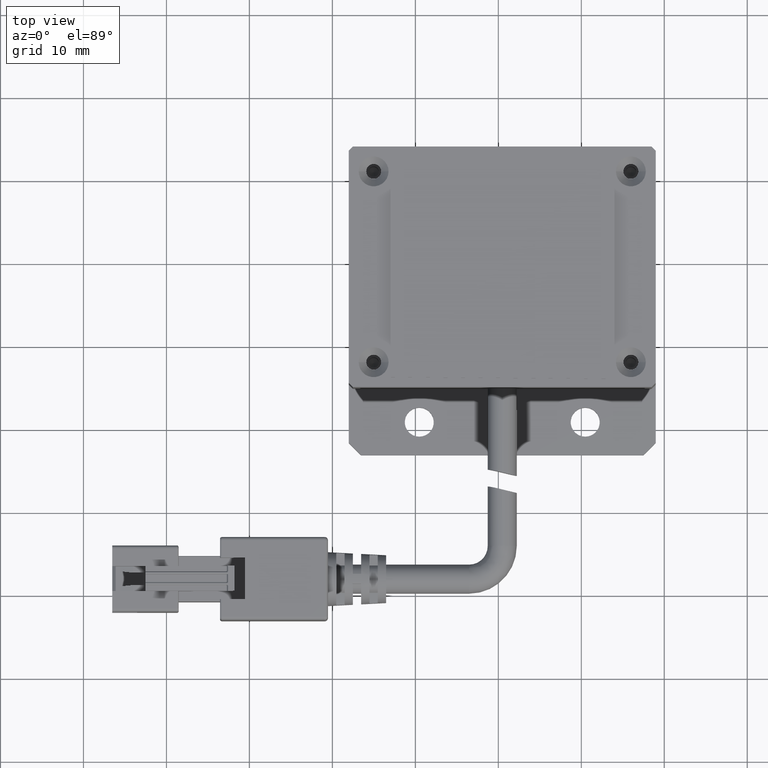
[diagram: clean part render]
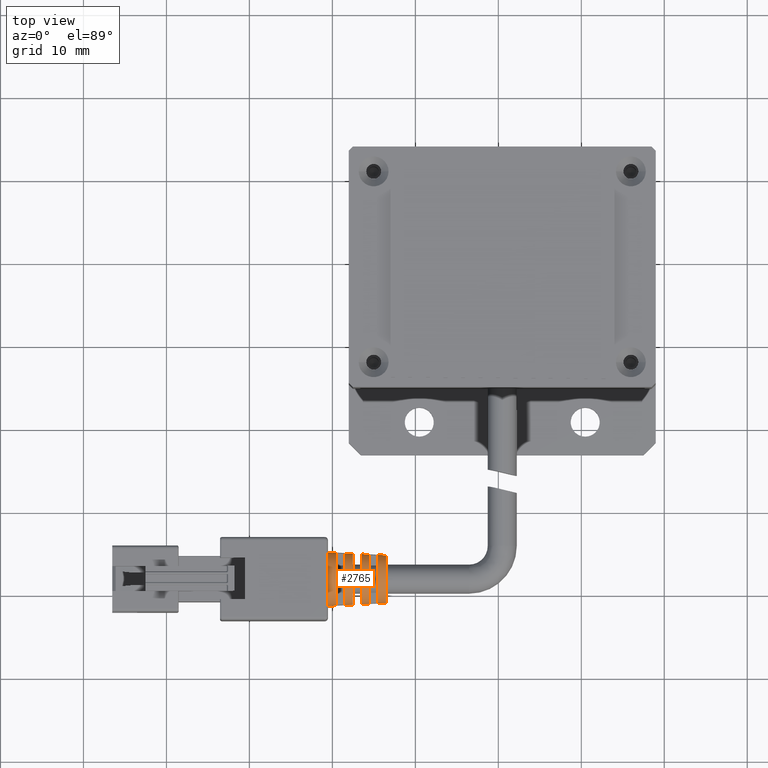
[diagram: same view with one face highlighted and labeled with its STEP entity id]
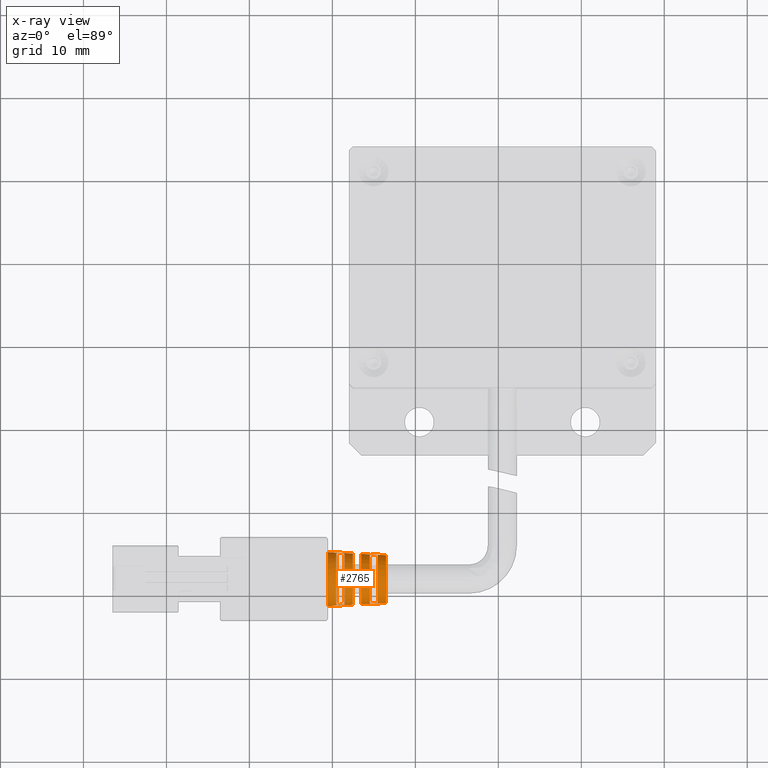
[diagram: x-ray of the same camera — body ghosted, the highlighted face saturated]
A machine part, top view. The second image highlights one B-rep face of the part: STEP entity #2765.
The next image is the same camera in x-ray: the body ghosted, the highlighted face saturated — about 0% of this face is hidden behind the body in this view.
In plain terms, the highlighted conical surface has half-angle 3 deg.
Its self-contained STEP definition (entity closure, byte-faithful):
#13 = VERTEX_POINT ( 'NONE', #13725 ) ;
#235 = DIRECTION ( 'NONE',  ( 0.0000000000000000000, -1.000000000000000000, 0.0000000000000000000 ) ) ;
#320 = DIRECTION ( 'NONE',  ( -0.9986295347545816000, -0.05233595624279531500, -4.539420596603597400E-018 ) ) ;
#571 = ORIENTED_EDGE ( 'NONE', *, *, #24659, .T. ) ;
#647 = CIRCLE ( 'NONE', #1646, 2.883145545018506200 ) ;
#693 = CARTESIAN_POINT ( 'NONE',  ( -18.52940053454562600, -38.05364642993505700, 3.999999999983630400 ) ) ;
#716 = EDGE_CURVE ( 'NONE', #24577, #17376, #4216, .T. ) ;
#727 = EDGE_CURVE ( 'NONE', #9324, #10523, #10055, .T. ) ;
#865 = ORIENTED_EDGE ( 'NONE', *, *, #8464, .F. ) ;
#882 = DIRECTION ( 'NONE',  ( -1.000000000000000000, -6.162975822039154700E-033, -5.345529420184391300E-049 ) ) ;
#973 = ORIENTED_EDGE ( 'NONE', *, *, #22278, .T. ) ;
#1204 = AXIS2_PLACEMENT_3D ( 'NONE', #24846, #12550, #235 ) ;
#1321 = CARTESIAN_POINT ( 'NONE',  ( -20.52940053455517600, -41.30364642993406900, 3.999999999983630400 ) ) ;
#1359 = ORIENTED_EDGE ( 'NONE', *, *, #3481, .F. ) ;
#1404 = EDGE_CURVE ( 'NONE', #17376, #20462, #24797, .T. ) ;
#1491 = CARTESIAN_POINT ( 'NONE',  ( -20.52940053432780200, -38.05364642993505700, 3.999999999983630400 ) ) ;
#1493 = CIRCLE ( 'NONE', #1204, 3.092776662151075500 ) ;
#1495 = CARTESIAN_POINT ( 'NONE',  ( -18.52940053454754800, -34.96622271903446900, 4.599999999983630500 ) ) ;
#1583 = AXIS2_PLACEMENT_3D ( 'NONE', #12156, #26458, #14215 ) ;
#1626 = CARTESIAN_POINT ( 'NONE',  ( -19.52940053457408000, -41.19444187217425900, 4.599999999983630500 ) ) ;
#1646 = AXIS2_PLACEMENT_3D ( 'NONE', #17338, #5009, #19403 ) ;
#1797 = VERTEX_POINT ( 'NONE', #15091 ) ;
#1834 = CARTESIAN_POINT ( 'NONE',  ( -16.52940053453607700, -38.05364642993505700, 3.999999999983630400 ) ) ;
#1866 = ORIENTED_EDGE ( 'NONE', *, *, #21341, .T. ) ;
#1957 = VERTEX_POINT ( 'NONE', #1321 ) ;
#2558 = EDGE_CURVE ( 'NONE', #21861, #6026, #20720, .T. ) ;
#2626 = VERTEX_POINT ( 'NONE', #3004 ) ;
#2728 = DIRECTION ( 'NONE',  ( 0.0000000000000000000, -1.000000000000000000, 8.273235679558057500E-016 ) ) ;
#2765 = ADVANCED_FACE ( 'NONE', ( #24008, #8268, #18555 ), #15975, .T. ) ;
#2816 = CARTESIAN_POINT ( 'NONE',  ( -20.52940053432780200, -34.80364642994796000, 3.999999999983631300 ) ) ;
#2844 = CARTESIAN_POINT ( 'NONE',  ( -14.52940053458337200, -38.05364642993505700, 3.999999999983630400 ) ) ;
#2867 = CARTESIAN_POINT ( 'NONE',  ( -17.19606688121181600, -38.65364642993505800, 7.016210776912242200 ) ) ;
#3004 = CARTESIAN_POINT ( 'NONE',  ( -15.52940053455882300, -40.98074594251322400, 4.599999999983629600 ) ) ;
#3154 = VERTEX_POINT ( 'NONE', #4854 ) ;
#3481 = EDGE_CURVE ( 'NONE', #13, #1957, #22953, .T. ) ;
#3515 = B_SPLINE_CURVE_WITH_KNOTS ( 'NONE', 3,
 ( #4932, #2867, #7025, #21347 ),
 .UNSPECIFIED., .F., .F.,
 ( 4, 4 ),
 ( 1.407150810064509900E-015, 0.001001426938980520000 ),
 .UNSPECIFIED. ) ;
#3766 = AXIS2_PLACEMENT_3D ( 'NONE', #2844, #17225, #4911 ) ;
#3768 = VERTEX_POINT ( 'NONE', #11970 ) ;
#3910 = DIRECTION ( 'NONE',  ( 0.0000000000000000000, -1.000000000000000000, 8.558452326718922600E-016 ) ) ;
#4009 = B_SPLINE_CURVE_WITH_KNOTS ( 'NONE', 3,
 ( #11742, #23917, #13796, #1495 ),
 .UNSPECIFIED., .F., .F.,
 ( 4, 4 ),
 ( 2.341740480690032800E-015, 0.001001423258043091700 ),
 .UNSPECIFIED. ) ;
#4216 = B_SPLINE_CURVE_WITH_KNOTS ( 'NONE', 3,
 ( #20178, #16132, #18196, #5800 ),
 .UNSPECIFIED., .F., .F.,
 ( 4, 4 ),
 ( 9.449387654586576900E-016, 0.001001423258045926400 ),
 .UNSPECIFIED. ) ;
#4465 = CARTESIAN_POINT ( 'NONE',  ( -16.52940053454563000, -37.45364642993506300, 6.980577619155053700 ) ) ;
#4469 = CARTESIAN_POINT ( 'NONE',  ( -16.52940053453607700, -41.09401531280149600, 3.999999999983630400 ) ) ;
#4854 = CARTESIAN_POINT ( 'NONE',  ( -15.52940053455745200, -35.12654691735696100, 4.599999999983630500 ) ) ;
#4911 = DIRECTION ( 'NONE',  ( 0.0000000000000000000, -1.000000000000000000, 0.0000000000000000000 ) ) ;
#4932 = CARTESIAN_POINT ( 'NONE',  ( -17.52940053456222500, -38.65364642993505800, 7.034018372034805300 ) ) ;
#4996 = EDGE_CURVE ( 'NONE', #6323, #10986, #22326, .T. ) ;
#5009 = DIRECTION ( 'NONE',  ( -1.000000000000000000, -6.162975822039154700E-033, -5.345529420184391300E-049 ) ) ;
#5331 = VECTOR ( 'NONE', #21378, 1000.000000000000200 ) ;
#5350 = EDGE_CURVE ( 'NONE', #3154, #13037, #26034, .T. ) ;
#5413 = ORIENTED_EDGE ( 'NONE', *, *, #21162, .T. ) ;
#5562 = EDGE_CURVE ( 'NONE', #1797, #9324, #3515, .T. ) ;
#5800 = CARTESIAN_POINT ( 'NONE',  ( -19.52940053457408000, -41.19444187217425900, 4.599999999983630500 ) ) ;
#6026 = VERTEX_POINT ( 'NONE', #20203 ) ;
#6067 = DIRECTION ( 'NONE',  ( 0.0000000000000000000, -1.000000000000000000, -8.558452326718922600E-016 ) ) ;
#6206 = CARTESIAN_POINT ( 'NONE',  ( -15.52940053455745200, -35.12654691735696100, 4.599999999983630500 ) ) ;
#6323 = VERTEX_POINT ( 'NONE', #25294 ) ;
#6817 = ORIENTED_EDGE ( 'NONE', *, *, #24410, .T. ) ;
#7025 = CARTESIAN_POINT ( 'NONE',  ( -16.86273354202424100, -38.65364642993505800, 6.998397299985025900 ) ) ;
#7106 = DIRECTION ( 'NONE',  ( -0.9986295347545816000, -0.05233595624279531500, -4.539420596603597400E-018 ) ) ;
#7269 = ORIENTED_EDGE ( 'NONE', *, *, #9190, .T. ) ;
#8133 = CIRCLE ( 'NONE', #12182, 3.092776662151075500 ) ;
#8268 = FACE_BOUND ( 'NONE', #23072, .T. ) ;
#8464 = EDGE_CURVE ( 'NONE', #3768, #10523, #17973, .T. ) ;
#8820 = DIRECTION ( 'NONE',  ( -1.000000000000000000, -6.162975822039154700E-033, -5.345529420184391300E-049 ) ) ;
#8838 = ORIENTED_EDGE ( 'NONE', *, *, #716, .T. ) ;
#8935 = ORIENTED_EDGE ( 'NONE', *, *, #21842, .T. ) ;
#9016 = CARTESIAN_POINT ( 'NONE',  ( -15.19606684410781700, -40.96291343481343700, 4.599999999983629600 ) ) ;
#9088 = CIRCLE ( 'NONE', #3766, 2.935553324303140400 ) ;
#9190 = EDGE_CURVE ( 'NONE', #20144, #2626, #14007, .T. ) ;
#9203 = AXIS2_PLACEMENT_3D ( 'NONE', #1491, #21924, #11823 ) ;
#9324 = VERTEX_POINT ( 'NONE', #13581 ) ;
#9378 = ORIENTED_EDGE ( 'NONE', *, *, #25763, .T. ) ;
#9772 = CARTESIAN_POINT ( 'NONE',  ( -14.52940053457772900, -35.18006446315118300, 4.599999999983629600 ) ) ;
#9883 = CIRCLE ( 'NONE', #24777, 3.145184441432725900 ) ;
#9935 = EDGE_LOOP ( 'NONE', ( #8838, #24358, #20311, #23068 ) ) ;
#9948 = CARTESIAN_POINT ( 'NONE',  ( -17.52940053456927300, -38.05364642993505700, 3.999999999983630400 ) ) ;
#10055 = CIRCLE ( 'NONE', #21377, 3.040368882866441200 ) ;
#10247 = LINE ( 'NONE', #20361, #25984 ) ;
#10344 = CARTESIAN_POINT ( 'NONE',  ( -14.52940053457772900, -35.18006446315118300, 4.599999999983629600 ) ) ;
#10523 = VERTEX_POINT ( 'NONE', #4469 ) ;
#10632 = EDGE_CURVE ( 'NONE', #13037, #20144, #9088, .T. ) ;
#10886 = VERTEX_POINT ( 'NONE', #16039 ) ;
#10986 = VERTEX_POINT ( 'NONE', #26408 ) ;
#11742 = CARTESIAN_POINT ( 'NONE',  ( -19.52940053456699900, -34.91285098769622400, 4.599999999983631400 ) ) ;
#11823 = DIRECTION ( 'NONE',  ( 0.0000000000000000000, -1.000000000000000000, 0.0000000000000000000 ) ) ;
#11861 = CARTESIAN_POINT ( 'NONE',  ( -18.52940053455040100, -41.14107014083579400, 4.599999999983630500 ) ) ;
#11970 = CARTESIAN_POINT ( 'NONE',  ( -13.52940053455017600, -40.93679197495356400, 3.999999999983630400 ) ) ;
#12028 = DIRECTION ( 'NONE',  ( 0.0000000000000000000, -1.000000000000000000, 0.0000000000000000000 ) ) ;
#12073 = CARTESIAN_POINT ( 'NONE',  ( -17.52940053456645600, -37.45364642993506300, 7.034018372035030900 ) ) ;
#12156 = CARTESIAN_POINT ( 'NONE',  ( -20.52940053455517600, -38.05364642993505700, 3.999999999983630400 ) ) ;
#12182 = AXIS2_PLACEMENT_3D ( 'NONE', #9948, #24293, #12028 ) ;
#12550 = DIRECTION ( 'NONE',  ( -1.000000000000000000, -6.162975822039154700E-033, -5.345529420184391300E-049 ) ) ;
#12728 = VERTEX_POINT ( 'NONE', #23052 ) ;
#13037 = VERTEX_POINT ( 'NONE', #9772 ) ;
#13164 = VERTEX_POINT ( 'NONE', #14334 ) ;
#13173 = CARTESIAN_POINT ( 'NONE',  ( -19.52940053457882300, -38.05364642993505700, 3.999999999983630400 ) ) ;
#13581 = CARTESIAN_POINT ( 'NONE',  ( -16.52940053453988200, -38.65364642993505800, 6.980577619154746400 ) ) ;
#13725 = CARTESIAN_POINT ( 'NONE',  ( -17.52940053456927300, -41.14642309208613100, 3.999999999983630400 ) ) ;
#13796 = CARTESIAN_POINT ( 'NONE',  ( -18.86273357489992700, -34.94842665316996000, 4.599999999983630500 ) ) ;
#13999 = CARTESIAN_POINT ( 'NONE',  ( -14.52940053456927500, -40.92722839671847600, 4.599999999983629600 ) ) ;
#14007 = B_SPLINE_CURVE_WITH_KNOTS ( 'NONE', 3,
 ( #15142, #25353, #9016, #23349 ),
 .UNSPECIFIED., .F., .F.,
 ( 4, 4 ),
 ( 2.821323884305459600E-015, 0.001001431039903066600 ),
 .UNSPECIFIED. ) ;
#14215 = DIRECTION ( 'NONE',  ( 0.0000000000000000000, -1.000000000000000000, 0.0000000000000000000 ) ) ;
#14256 = DIRECTION ( 'NONE',  ( 1.000000000000000000, 6.162975822039154700E-033, 5.345529420184391300E-049 ) ) ;
#14327 = ORIENTED_EDGE ( 'NONE', *, *, #5562, .T. ) ;
#14334 = CARTESIAN_POINT ( 'NONE',  ( -13.52940053455017600, -35.17050088491654900, 3.999999999983631300 ) ) ;
#15077 = DIRECTION ( 'NONE',  ( 1.000000000000000000, 6.162975822039154700E-033, 5.345529420184391300E-049 ) ) ;
#15091 = CARTESIAN_POINT ( 'NONE',  ( -17.52940053456222500, -38.65364642993505800, 7.034018372034805300 ) ) ;
#15142 = CARTESIAN_POINT ( 'NONE',  ( -14.52940053456927500, -40.92722839671847600, 4.599999999983629600 ) ) ;
#15169 = CARTESIAN_POINT ( 'NONE',  ( -19.52940053456699900, -34.91285098769622400, 4.599999999983631400 ) ) ;
#15265 = DIRECTION ( 'NONE',  ( 0.0000000000000000000, -1.000000000000000000, 0.0000000000000000000 ) ) ;
#15371 = EDGE_CURVE ( 'NONE', #12728, #24577, #9883, .T. ) ;
#15696 = AXIS2_PLACEMENT_3D ( 'NONE', #13173, #882, #15265 ) ;
#15975 = CONICAL_SURFACE ( 'NONE', #9203, 3.249999999987096500, 0.05235987755968116900 ) ;
#16039 = CARTESIAN_POINT ( 'NONE',  ( -16.52940053453607700, -35.01327754706861800, 3.999999999983631300 ) ) ;
#16132 = CARTESIAN_POINT ( 'NONE',  ( -18.86273357489992400, -41.15886620670015400, 4.599999999983630500 ) ) ;
#16206 = DIRECTION ( 'NONE',  ( 1.000000000000000000, 6.162975822039154700E-033, 5.345529420184391300E-049 ) ) ;
#17225 = DIRECTION ( 'NONE',  ( 1.000000000000000000, 6.162975822039154700E-033, 5.345529420184391300E-049 ) ) ;
#17338 = CARTESIAN_POINT ( 'NONE',  ( -13.52940053455017600, -38.05364642993505700, 3.999999999983630400 ) ) ;
#17353 = CARTESIAN_POINT ( 'NONE',  ( -20.52940053432780200, -41.30364642992215400, 3.999999999983630400 ) ) ;
#17376 = VERTEX_POINT ( 'NONE', #1626 ) ;
#17508 = VECTOR ( 'NONE', #7106, 1000.000000000000200 ) ;
#17973 = LINE ( 'NONE', #24936, #22768 ) ;
#18196 = CARTESIAN_POINT ( 'NONE',  ( -19.19606691330625700, -41.17665669055632100, 4.599999999983630500 ) ) ;
#18289 = CARTESIAN_POINT ( 'NONE',  ( -16.52940053453607700, -38.05364642993505700, 3.999999999983630400 ) ) ;
#18409 = EDGE_CURVE ( 'NONE', #20462, #12728, #4009, .T. ) ;
#18518 = CARTESIAN_POINT ( 'NONE',  ( -15.19606684410781500, -35.14437942505667700, 4.599999999983630500 ) ) ;
#18555 = FACE_OUTER_BOUND ( 'NONE', #24645, .T. ) ;
#19206 = CIRCLE ( 'NONE', #19773, 2.987961103584790800 ) ;
#19403 = DIRECTION ( 'NONE',  ( 0.0000000000000000000, -1.000000000000000000, 0.0000000000000000000 ) ) ;
#19773 = AXIS2_PLACEMENT_3D ( 'NONE', #21099, #8820, #23169 ) ;
#20144 = VERTEX_POINT ( 'NONE', #13999 ) ;
#20178 = CARTESIAN_POINT ( 'NONE',  ( -18.52940053455040100, -41.14107014083579400, 4.599999999983630500 ) ) ;
#20203 = CARTESIAN_POINT ( 'NONE',  ( -17.52940053456645600, -37.45364642993506300, 7.034018372035030900 ) ) ;
#20311 = ORIENTED_EDGE ( 'NONE', *, *, #18409, .T. ) ;
#20361 = CARTESIAN_POINT ( 'NONE',  ( -20.52940053432780200, -34.80364642994796000, 3.999999999983631300 ) ) ;
#20462 = VERTEX_POINT ( 'NONE', #15169 ) ;
#20720 = B_SPLINE_CURVE_WITH_KNOTS ( 'NONE', 3,
 ( #26217, #22263, #24342, #12073 ),
 .UNSPECIFIED., .F., .F.,
 ( 4, 4 ),
 ( 1.952605237728863600E-015, 0.001001426938979543600 ),
 .UNSPECIFIED. ) ;
#20850 = ORIENTED_EDGE ( 'NONE', *, *, #10632, .T. ) ;
#21099 = CARTESIAN_POINT ( 'NONE',  ( -15.52940053455972500, -38.05364642993505700, 3.999999999983630400 ) ) ;
#21162 = EDGE_CURVE ( 'NONE', #10986, #1957, #25972, .T. ) ;
#21341 = EDGE_CURVE ( 'NONE', #2626, #3154, #19206, .T. ) ;
#21347 = CARTESIAN_POINT ( 'NONE',  ( -16.52940053453988200, -38.65364642993505800, 6.980577619154746400 ) ) ;
#21377 = AXIS2_PLACEMENT_3D ( 'NONE', #18289, #14256, #6067 ) ;
#21378 = DIRECTION ( 'NONE',  ( -0.9986295347545816000, 0.05233595624279531500, 1.094872672590912000E-017 ) ) ;
#21842 = EDGE_CURVE ( 'NONE', #13, #1797, #1493, .T. ) ;
#21861 = VERTEX_POINT ( 'NONE', #4465 ) ;
#21924 = DIRECTION ( 'NONE',  ( -1.000000000000000000, -6.162975822039154700E-033, -5.345529420184391300E-049 ) ) ;
#21969 = ORIENTED_EDGE ( 'NONE', *, *, #4996, .T. ) ;
#22263 = CARTESIAN_POINT ( 'NONE',  ( -16.86273354202423700, -37.45364642993506300, 6.998397299985025900 ) ) ;
#22278 = EDGE_CURVE ( 'NONE', #10886, #21861, #25870, .T. ) ;
#22326 = LINE ( 'NONE', #2816, #5331 ) ;
#22402 = DIRECTION ( 'NONE',  ( -0.9986295347545816000, 0.05233595624279531500, 1.094872672590912000E-017 ) ) ;
#22633 = CARTESIAN_POINT ( 'NONE',  ( -14.86273350399157200, -35.16221848270946300, 4.599999999983629600 ) ) ;
#22636 = ORIENTED_EDGE ( 'NONE', *, *, #2558, .T. ) ;
#22768 = VECTOR ( 'NONE', #320, 1000.000000000000200 ) ;
#22953 = LINE ( 'NONE', #17353, #17508 ) ;
#23052 = CARTESIAN_POINT ( 'NONE',  ( -18.52940053454754800, -34.96622271903446900, 4.599999999983630500 ) ) ;
#23068 = ORIENTED_EDGE ( 'NONE', *, *, #15371, .T. ) ;
#23072 = EDGE_LOOP ( 'NONE', ( #7269, #1866, #25291, #20850 ) ) ;
#23169 = DIRECTION ( 'NONE',  ( 0.0000000000000000000, -1.000000000000000000, 0.0000000000000000000 ) ) ;
#23349 = CARTESIAN_POINT ( 'NONE',  ( -15.52940053455882300, -40.98074594251322400, 4.599999999983629600 ) ) ;
#23917 = CARTESIAN_POINT ( 'NONE',  ( -19.19606691330625700, -34.93063616931379300, 4.599999999983631400 ) ) ;
#24008 = FACE_BOUND ( 'NONE', #9935, .T. ) ;
#24293 = DIRECTION ( 'NONE',  ( -1.000000000000000000, -6.162975822039154700E-033, -5.345529420184391300E-049 ) ) ;
#24342 = CARTESIAN_POINT ( 'NONE',  ( -17.19606688121181600, -37.45364642993506300, 7.016210776912242200 ) ) ;
#24358 = ORIENTED_EDGE ( 'NONE', *, *, #1404, .T. ) ;
#24410 = EDGE_CURVE ( 'NONE', #3768, #13164, #647, .T. ) ;
#24571 = ORIENTED_EDGE ( 'NONE', *, *, #727, .T. ) ;
#24577 = VERTEX_POINT ( 'NONE', #11861 ) ;
#24645 = EDGE_LOOP ( 'NONE', ( #6817, #571, #973, #22636, #9378, #21969, #5413, #1359, #8935, #14327, #24571, #865 ) ) ;
#24659 = EDGE_CURVE ( 'NONE', #13164, #10886, #10247, .T. ) ;
#24777 = AXIS2_PLACEMENT_3D ( 'NONE', #693, #15077, #2728 ) ;
#24797 = CIRCLE ( 'NONE', #15696, 3.197592220717360200 ) ;
#24846 = CARTESIAN_POINT ( 'NONE',  ( -17.52940053456927300, -38.05364642993505700, 3.999999999983630400 ) ) ;
#24936 = CARTESIAN_POINT ( 'NONE',  ( -20.52940053432780200, -41.30364642992215400, 3.999999999983630400 ) ) ;
#25291 = ORIENTED_EDGE ( 'NONE', *, *, #5350, .T. ) ;
#25294 = CARTESIAN_POINT ( 'NONE',  ( -17.52940053456927300, -34.96086976778398300, 3.999999999983631300 ) ) ;
#25353 = CARTESIAN_POINT ( 'NONE',  ( -14.86273350399157800, -40.94507437716065100, 4.599999999983629600 ) ) ;
#25763 = EDGE_CURVE ( 'NONE', #6026, #6323, #8133, .T. ) ;
#25870 = CIRCLE ( 'NONE', #26286, 3.040368882866441200 ) ;
#25972 = CIRCLE ( 'NONE', #1583, 3.249999999999010600 ) ;
#25984 = VECTOR ( 'NONE', #22402, 1000.000000000000200 ) ;
#26034 = B_SPLINE_CURVE_WITH_KNOTS ( 'NONE', 3,
 ( #6206, #18518, #22633, #10344 ),
 .UNSPECIFIED., .F., .F.,
 ( 4, 4 ),
 ( 4.709287019939731200E-016, 0.001001431039896518900 ),
 .UNSPECIFIED. ) ;
#26217 = CARTESIAN_POINT ( 'NONE',  ( -16.52940053454563000, -37.45364642993506300, 6.980577619155053700 ) ) ;
#26286 = AXIS2_PLACEMENT_3D ( 'NONE', #1834, #16206, #3910 ) ;
#26408 = CARTESIAN_POINT ( 'NONE',  ( -20.52940053455517600, -34.80364642993604500, 3.999999999983631300 ) ) ;
#26458 = DIRECTION ( 'NONE',  ( 1.000000000000000000, 6.162975822039154700E-033, 5.345529420184391300E-049 ) ) ;